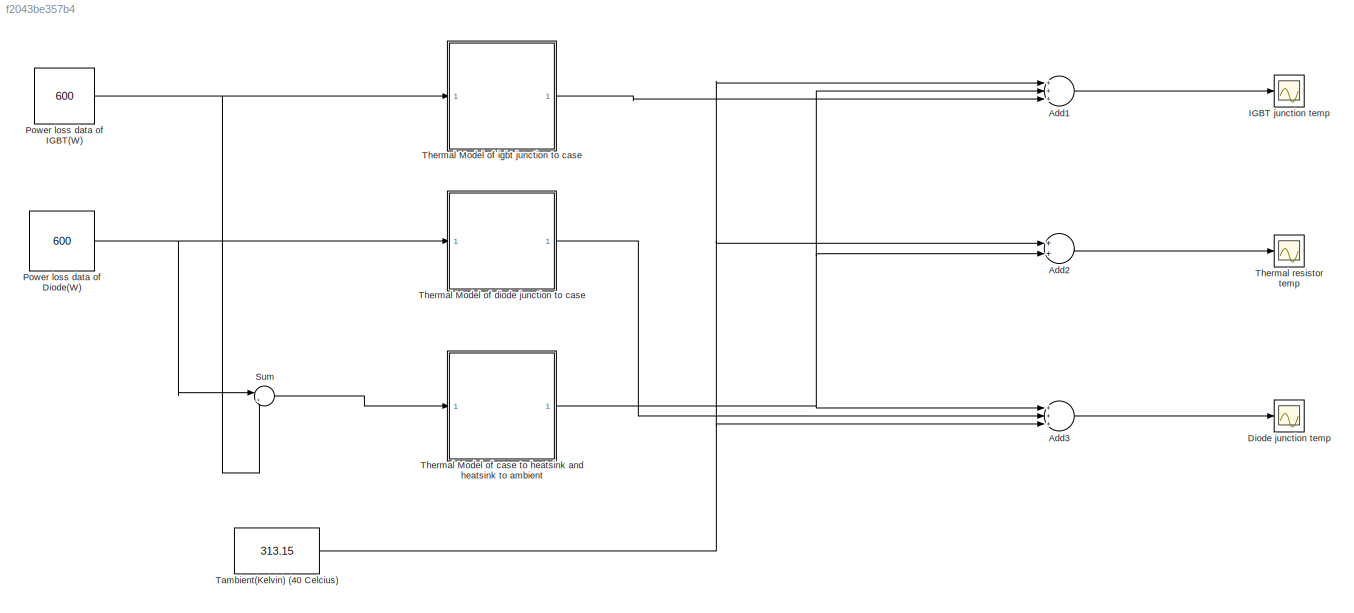
MODEL slx_f2043be357b4
KIND model
CONFIG AbsTol = auto
CONFIG FixedStep = 10
CONFIG MaxStep = auto
CONFIG MinStep = auto
CONFIG RelTol = 1e-3
CONFIG SampleTimeConstraint = Unconstrained
CONFIG Solver = ode1
CONFIG SolverMode = Auto
CONFIG SolverName = ode1
CONFIG StartTime = 0.0
CONFIG StopTime = 10.0
BLOCK [Sum] Add1
  InputSameDT = off
  Inputs = +++
  OutDataTypeStr = Inherit: Inherit via internal rule
  Ports = [3, 1]
  SaturateOnIntegerOverflow = off
BLOCK [Sum] Add2
  InputSameDT = off
  OutDataTypeStr = Inherit: Inherit via internal rule
  Ports = [2, 1]
  SaturateOnIntegerOverflow = off
BLOCK [Sum] Add3
  InputSameDT = off
  Inputs = +++
  OutDataTypeStr = Inherit: Inherit via internal rule
  Ports = [3, 1]
  SaturateOnIntegerOverflow = off
BLOCK [Scope] Diode junction temp
  Floating = off
  NumInputPorts = 1
  Ports = [1]
  SaveName = ScopeData1
BLOCK [Scope] IGBT junction temp
  Floating = off
  NumInputPorts = 1
  Ports = [1]
BLOCK [Constant] Power loss data of Diode(W) 
  SampleTime = 10
  Value = 600
BLOCK [Constant] Power loss data of IGBT(W)
  SampleTime = 10
  Value = 600
BLOCK [Sum] Sum
  IconShape = round
  InputSameDT = off
  Inputs = |++
  OutDataTypeStr = Inherit: Inherit via internal rule
  Ports = [2, 1]
  SaturateOnIntegerOverflow = off
BLOCK [Constant] Tambient(Kelvin) (40 Celcius)
  Value = 313.15
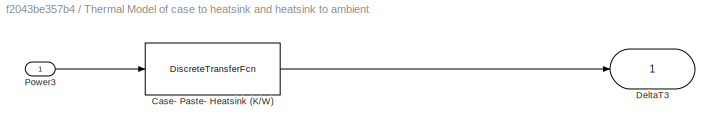
BLOCK [SubSystem] Thermal Model of case to heatsink and heatsink to ambient
  Ports = [1, 1]
  RequestExecContextInheritance = off
BLOCK [DiscreteTransferFcn] Thermal Model of case to heatsink and heatsink to ambient/Case- Paste- Heatsink (K//W)
  Denominator = [1]
  InputPortMap = u0
  Numerator = [0.015+0.03]
  Ports = [1, 1]
BLOCK [Outport] Thermal Model of case to heatsink and heatsink to ambient/DeltaT3
  IconDisplay = Port number
BLOCK [Inport] Thermal Model of case to heatsink and heatsink to ambient/Power3
  IconDisplay = Port number
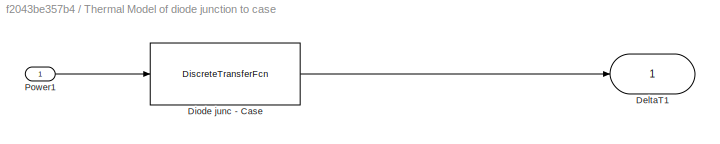
BLOCK [SubSystem] Thermal Model of diode junction to case
  Ports = [1, 1]
  RequestExecContextInheritance = off
BLOCK [Outport] Thermal Model of diode junction to case/DeltaT1
  IconDisplay = Port number
BLOCK [DiscreteTransferFcn] Thermal Model of diode junction to case/Diode junc - Case
  Denominator = [1]
  InputPortMap = u0
  Numerator = [0.12]
  Ports = [1, 1]
BLOCK [Inport] Thermal Model of diode junction to case/Power1
  IconDisplay = Port number
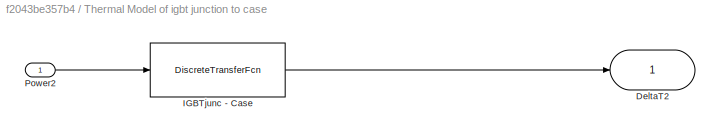
BLOCK [SubSystem] Thermal Model of igbt junction to case
  Ports = [1, 1]
  RequestExecContextInheritance = off
BLOCK [Outport] Thermal Model of igbt junction to case/DeltaT2
  IconDisplay = Port number
BLOCK [DiscreteTransferFcn] Thermal Model of igbt junction to case/IGBTjunc - Case
  Denominator = [1]
  InputPortMap = u0
  Numerator = [0.066]
  Ports = [1, 1]
BLOCK [Inport] Thermal Model of igbt junction to case/Power2
  IconDisplay = Port number
BLOCK [Scope] Thermal resistor temp
  Floating = off
  NumInputPorts = 1
  Ports = [1]
  SaveName = ScopeData2
LINE Add1:1 -> IGBT junction temp:1
LINE Add2:1 -> Thermal resistor temp:1
LINE Add3:1 -> Diode junction temp:1
NET Power loss data of Diode(W) :1 -> Sum:1, Thermal Model of diode junction to case:1
NET Power loss data of IGBT(W):1 -> Sum:2, Thermal Model of igbt junction to case:1
LINE Sum:1 -> Thermal Model of case to heatsink and heatsink to ambient:1
NET Tambient(Kelvin) (40 Celcius):1 -> Add1:1, Add2:1, Add3:3
LINE Thermal Model of case to heatsink and heatsink to ambient/Case- Paste- Heatsink (K//W):1 -> Thermal Model of case to heatsink and heatsink to ambient/DeltaT3:1
LINE Thermal Model of case to heatsink and heatsink to ambient/Power3:1 -> Thermal Model of case to heatsink and heatsink to ambient/Case- Paste- Heatsink (K//W):1
NET Thermal Model of case to heatsink and heatsink to ambient:1 -> Add1:2, Add2:2, Add3:1
LINE Thermal Model of diode junction to case/Diode junc - Case:1 -> Thermal Model of diode junction to case/DeltaT1:1
LINE Thermal Model of diode junction to case/Power1:1 -> Thermal Model of diode junction to case/Diode junc - Case:1
LINE Thermal Model of diode junction to case:1 -> Add3:2
LINE Thermal Model of igbt junction to case/IGBTjunc - Case:1 -> Thermal Model of igbt junction to case/DeltaT2:1
LINE Thermal Model of igbt junction to case/Power2:1 -> Thermal Model of igbt junction to case/IGBTjunc - Case:1
LINE Thermal Model of igbt junction to case:1 -> Add1:3
note: NET lines group one-source signal fan-out (src -> all destinations, sorted); 1:1 wires keep LINE
